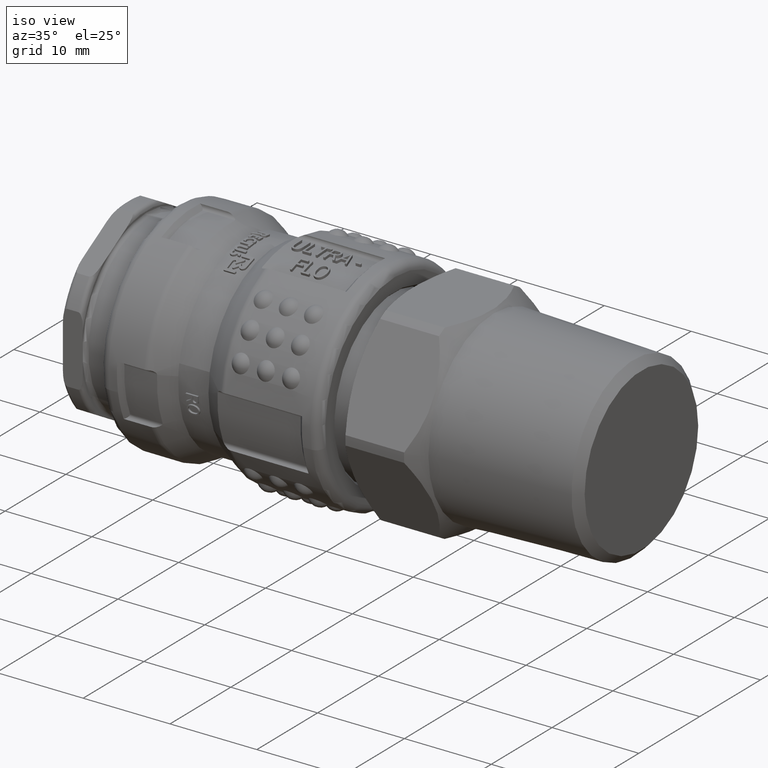
[diagram: clean part render]
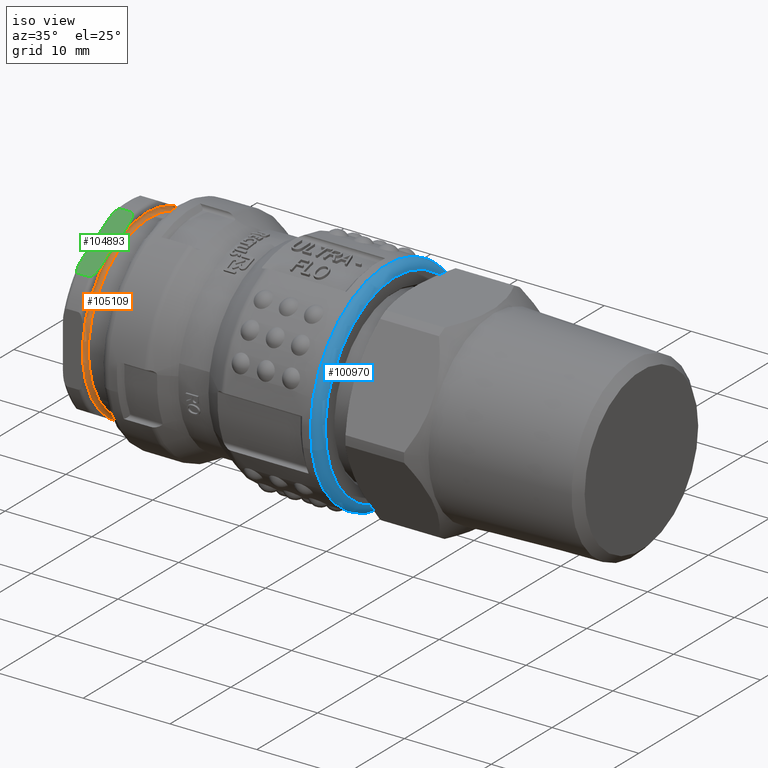
[diagram: same view with three faces highlighted in distinct colors, each labeled with its STEP entity id]
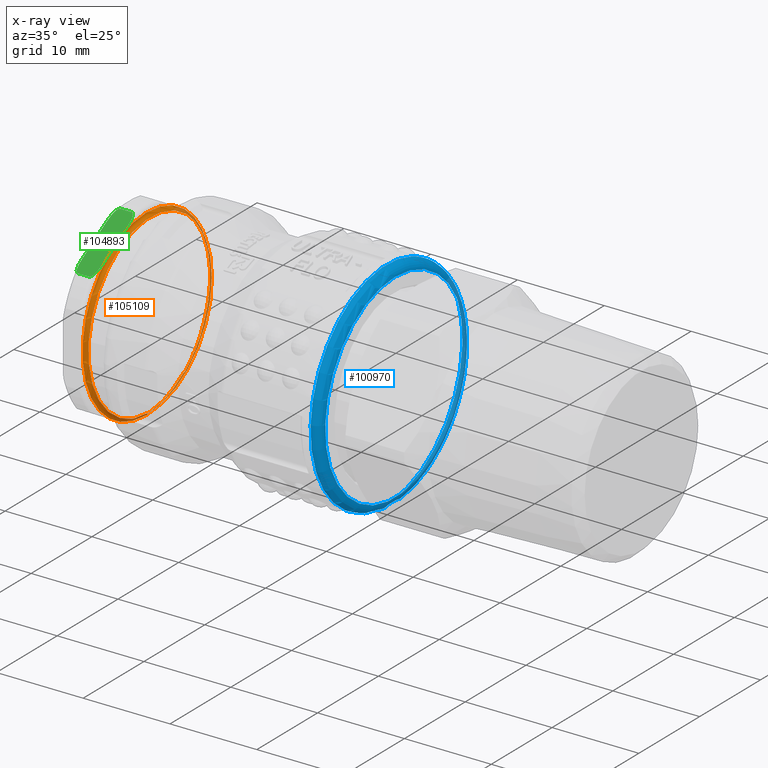
[diagram: x-ray of the same camera — body ghosted, the three highlighted faces saturated]
A machine part, iso view with three faces highlighted in distinct colors.
The next image is the same camera in x-ray (body ghosted, the three faces saturated) — at least one of them is partly hidden behind the body in this view.
Their STEP definitions:

[orange] entity #105109 — the highlighted toroidal blend (fillet) surface has major radius 10.55 mm and minor (blend) radius 0.4 mm.
#104423=CARTESIAN_POINT('',(2.300000000000000,6.138467782195813,-8.580309626519547));
#104424=VERTEX_POINT('',#104423);
#104431=CARTESIAN_POINT('',(2.300000000000000,4.361532217804172,-9.606223852953677));
#104432=VERTEX_POINT('',#104431);
#104433=CARTESIAN_POINT('',(2.299999999999998,4.361532217804154,-9.606223852953688));
#104434=CARTESIAN_POINT('',(2.299999999999998,4.443163184411790,-9.559094192408560));
#104435=CARTESIAN_POINT('',(2.300378094133238,4.541119797077845,-9.502538915716910));
#104436=CARTESIAN_POINT('',(2.301762414152041,4.818765312358481,-9.342240202730341));
#104437=CARTESIAN_POINT('',(2.303137303340309,5.053982863045070,-9.206437286523318));
#104438=CARTESIAN_POINT('',(2.303137303340309,5.249999999999994,-9.093266739736613));
#104439=CARTESIAN_POINT('',(2.303137303340310,5.446017136954917,-8.980096192949908));
#104440=CARTESIAN_POINT('',(2.301762414152041,5.681234687641505,-8.844293276742882));
#104441=CARTESIAN_POINT('',(2.300378094133237,5.958880202922140,-8.683994563756315));
#104442=CARTESIAN_POINT('',(2.299999999999998,6.056836815588195,-8.627439287064663));
#104443=CARTESIAN_POINT('',(2.299999999999998,6.138467782195831,-8.580309626519536));
#104444=B_SPLINE_CURVE_WITH_KNOTS('',3,(#104433,#104434,#104435,#104436,#104437,#104438,#104439,#104440,#104441,#104442,#104443),.UNSPECIFIED.,.F.,.U.,(4,2,3,2,4),(-0.096180124399100,-0.067902328072023,0.0,0.067902328072023,0.096180124399100),.UNSPECIFIED.);
#104445=EDGE_CURVE('',#104432,#104424,#104444,.T.);
#104555=CARTESIAN_POINT('',(2.300000000000000,-4.361532217804166,-9.606223852953681));
#104556=VERTEX_POINT('',#104555);
#104563=CARTESIAN_POINT('',(2.300000000000000,-6.138467782195844,-8.580309626519526));
#104564=VERTEX_POINT('',#104563);
#104565=CARTESIAN_POINT('',(2.299999999999998,-6.138467782195862,-8.580309626519515));
#104566=CARTESIAN_POINT('',(2.299999999999998,-6.056836815588220,-8.627439287064645));
#104567=CARTESIAN_POINT('',(2.300378094133238,-5.958880202922158,-8.683994563756301));
#104568=CARTESIAN_POINT('',(2.301762414152041,-5.681234687641517,-8.844293276742871));
#104569=CARTESIAN_POINT('',(2.303137303340310,-5.446017136954929,-8.980096192949898));
#104570=CARTESIAN_POINT('',(2.303137303340310,-5.250000000000004,-9.093266739736603));
#104571=CARTESIAN_POINT('',(2.303137303340310,-5.053982863045081,-9.206437286523308));
#104572=CARTESIAN_POINT('',(2.301762414152041,-4.818765312358494,-9.342240202730334));
#104573=CARTESIAN_POINT('',(2.300378094133237,-4.541119797077852,-9.502538915716905));
#104574=CARTESIAN_POINT('',(2.299999999999998,-4.443163184411789,-9.559094192408558));
#104575=CARTESIAN_POINT('',(2.299999999999998,-4.361532217804147,-9.606223852953692));
#104576=B_SPLINE_CURVE_WITH_KNOTS('',3,(#104565,#104566,#104567,#104568,#104569,#104570,#104571,#104572,#104573,#104574,#104575),.UNSPECIFIED.,.F.,.U.,(4,2,3,2,4),(-0.096180124399102,-0.067902328072023,0.0,0.067902328072023,0.096180124399102),.UNSPECIFIED.);
#104577=EDGE_CURVE('',#104564,#104556,#104576,.T.);
#104687=CARTESIAN_POINT('',(2.300000000000000,-10.500000000000000,-1.025914226434153));
#104688=VERTEX_POINT('',#104687);
#104695=CARTESIAN_POINT('',(2.300000000000000,-10.500000000000000,1.025914226434156));
#104696=VERTEX_POINT('',#104695);
#104697=CARTESIAN_POINT('',(2.299999999999998,-10.500000000000000,1.025914226434178));
#104698=CARTESIAN_POINT('',(2.299999999999998,-10.500000000000000,0.931654905343915));
#104699=CARTESIAN_POINT('',(2.300378094133237,-10.500000000000000,0.818544351960605));
#104700=CARTESIAN_POINT('',(2.301762414152041,-10.500000000000000,0.497946925987463));
#104701=CARTESIAN_POINT('',(2.303137303340310,-10.500000000000000,0.226341093573411));
#104702=CARTESIAN_POINT('',(2.303137303340310,-10.500000000000000,1.748601E-015));
#104703=CARTESIAN_POINT('',(2.303137303340310,-10.500000000000000,-0.226341093573408));
#104704=CARTESIAN_POINT('',(2.301762414152041,-10.500000000000000,-0.497946925987459));
#104705=CARTESIAN_POINT('',(2.300378094133237,-10.500000000000000,-0.818544351960602));
#104706=CARTESIAN_POINT('',(2.299999999999998,-10.500000000000000,-0.931654905343911));
#104707=CARTESIAN_POINT('',(2.299999999999998,-10.500000000000000,-1.025914226434174));
#104708=B_SPLINE_CURVE_WITH_KNOTS('',3,(#104697,#104698,#104699,#104700,#104701,#104702,#104703,#104704,#104705,#104706,#104707),.UNSPECIFIED.,.F.,.U.,(4,2,3,2,4),(-0.096180124399102,-0.067902328072023,0.0,0.067902328072023,0.096180124399102),.UNSPECIFIED.);
#104709=EDGE_CURVE('',#104696,#104688,#104708,.T.);
#104819=CARTESIAN_POINT('',(2.300000000000000,-6.138467782195836,8.580309626519529));
#104820=VERTEX_POINT('',#104819);
#104827=CARTESIAN_POINT('',(2.300000000000000,-4.361532217804158,9.606223852953685));
#104828=VERTEX_POINT('',#104827);
#104829=CARTESIAN_POINT('',(2.299999999999998,-4.361532217804140,9.606223852953695));
#104830=CARTESIAN_POINT('',(2.299999999999998,-4.443163184411781,9.559094192408564));
#104831=CARTESIAN_POINT('',(2.300378094133237,-4.541119797077843,9.502538915716910));
#104832=CARTESIAN_POINT('',(2.301762414152041,-4.818765312358486,9.342240202730338));
#104833=CARTESIAN_POINT('',(2.303137303340309,-5.053982863045075,9.206437286523313));
#104834=CARTESIAN_POINT('',(2.303137303340310,-5.249999999999998,9.093266739736608));
#104835=CARTESIAN_POINT('',(2.303137303340310,-5.446017136954922,8.980096192949903));
#104836=CARTESIAN_POINT('',(2.301762414152041,-5.681234687641509,8.844293276742876));
#104837=CARTESIAN_POINT('',(2.300378094133238,-5.958880202922150,8.683994563756306));
#104838=CARTESIAN_POINT('',(2.299999999999998,-6.056836815588214,8.627439287064650));
#104839=CARTESIAN_POINT('',(2.299999999999998,-6.138467782195854,8.580309626519520));
#104840=B_SPLINE_CURVE_WITH_KNOTS('',3,(#104829,#104830,#104831,#104832,#104833,#104834,#104835,#104836,#104837,#104838,#104839),.UNSPECIFIED.,.F.,.U.,(4,2,3,2,4),(-0.096180124399102,-0.067902328072023,0.0,0.067902328072023,0.096180124399102),.UNSPECIFIED.);
#104841=EDGE_CURVE('',#104828,#104820,#104840,.T.);
#104951=CARTESIAN_POINT('',(2.300000000000000,4.361532217804163,9.606223852953683));
#104952=VERTEX_POINT('',#104951);
#104959=CARTESIAN_POINT('',(2.300000000000000,6.138467782195840,8.580309626519528));
#104960=VERTEX_POINT('',#104959);
#104961=CARTESIAN_POINT('',(2.299999999999998,6.138467782195860,8.580309626519517));
#104962=CARTESIAN_POINT('',(2.299999999999998,6.056836815588218,8.627439287064648));
#104963=CARTESIAN_POINT('',(2.300378094133238,5.958880202922154,8.683994563756304));
#104964=CARTESIAN_POINT('',(2.301762414152041,5.681234687641512,8.844293276742874));
#104965=CARTESIAN_POINT('',(2.303137303340310,5.446017136954925,8.980096192949901));
#104966=CARTESIAN_POINT('',(2.303137303340310,5.250000000000002,9.093266739736606));
#104967=CARTESIAN_POINT('',(2.303137303340310,5.053982863045078,9.206437286523311));
#104968=CARTESIAN_POINT('',(2.301762414152041,4.818765312358490,9.342240202730336));
#104969=CARTESIAN_POINT('',(2.300378094133237,4.541119797077847,9.502538915716908));
#104970=CARTESIAN_POINT('',(2.299999999999998,4.443163184411786,9.559094192408562));
#104971=CARTESIAN_POINT('',(2.299999999999998,4.361532217804144,9.606223852953693));
#104972=B_SPLINE_CURVE_WITH_KNOTS('',3,(#104961,#104962,#104963,#104964,#104965,#104966,#104967,#104968,#104969,#104970,#104971),.UNSPECIFIED.,.F.,.U.,(4,2,3,2,4),(-0.096180124399102,-0.067902328072023,0.0,0.067902328072023,0.096180124399102),.UNSPECIFIED.);
#104973=EDGE_CURVE('',#104960,#104952,#104972,.T.);
#105026=CARTESIAN_POINT('',(2.699999999999998,0.0,0.0));
#105027=DIRECTION('',(1.0,0.0,0.0));
#105028=DIRECTION('',(0.0,0.0,-1.0));
#105029=AXIS2_PLACEMENT_3D('',#105026,#105027,#105028);
#105030=TOROIDAL_SURFACE('',#105029,10.550000000000001,0.400000000000000);
#105031=CARTESIAN_POINT('',(2.699999999999998,10.150000000000002,0.0));
#105032=VERTEX_POINT('',#105031);
#105033=CARTESIAN_POINT('',(2.700000000000000,0.0,0.0));
#105034=DIRECTION('',(1.0,0.0,0.0));
#105035=DIRECTION('',(0.0,1.0,0.0));
#105036=AXIS2_PLACEMENT_3D('',#105033,#105034,#105035);
#105037=CIRCLE('',#105036,10.150000000000002);
#105038=EDGE_CURVE('',#105032,#105032,#105037,.T.);
#105039=ORIENTED_EDGE('',*,*,#105038,.F.);
#105040=EDGE_LOOP('',(#105039));
#105041=FACE_OUTER_BOUND('',#105040,.T.);
#105042=ORIENTED_EDGE('',*,*,#104445,.T.);
#105043=CARTESIAN_POINT('',(2.300000000000000,10.500000000000000,-1.025914226434155));
#105044=VERTEX_POINT('',#105043);
#105045=CARTESIAN_POINT('',(2.300000000000000,0.0,0.0));
#105046=DIRECTION('',(1.0,0.0,0.0));
#105047=DIRECTION('',(0.0,1.0,0.0));
#105048=AXIS2_PLACEMENT_3D('',#105045,#105046,#105047);
#105049=CIRCLE('',#105048,10.549999999999999);
#105050=EDGE_CURVE('',#104424,#105044,#105049,.T.);
#105051=ORIENTED_EDGE('',*,*,#105050,.T.);
#105052=CARTESIAN_POINT('',(2.300000000000000,10.500000000000000,1.025914226434155));
#105053=VERTEX_POINT('',#105052);
#105054=CARTESIAN_POINT('',(2.299999999999998,10.500000000000000,-1.025914226434176));
#105055=CARTESIAN_POINT('',(2.299999999999998,10.500000000000000,-0.931654905343913));
#105056=CARTESIAN_POINT('',(2.300378094133237,10.500000000000000,-0.818544351960603));
#105057=CARTESIAN_POINT('',(2.301762414152041,10.500000000000000,-0.497946925987461));
#105058=CARTESIAN_POINT('',(2.303137303340310,10.500000000000000,-0.226341093573410));
#105059=CARTESIAN_POINT('',(2.303137303340310,10.500000000000000,0.0));
#105060=CARTESIAN_POINT('',(2.303137303340310,10.500000000000000,0.226341093573410));
#105061=CARTESIAN_POINT('',(2.301762414152041,10.500000000000000,0.497946925987461));
#105062=CARTESIAN_POINT('',(2.300378094133237,10.500000000000000,0.818544351960603));
#105063=CARTESIAN_POINT('',(2.299999999999998,10.500000000000000,0.931654905343913));
#105064=CARTESIAN_POINT('',(2.299999999999998,10.500000000000000,1.025914226434176));
#105065=B_SPLINE_CURVE_WITH_KNOTS('',3,(#105054,#105055,#105056,#105057,#105058,#105059,#105060,#105061,#105062,#105063,#105064),.UNSPECIFIED.,.F.,.U.,(4,2,3,2,4),(-0.096180124399102,-0.067902328072023,0.0,0.067902328072023,0.096180124399102),.UNSPECIFIED.);
#105066=EDGE_CURVE('',#105044,#105053,#105065,.T.);
#105067=ORIENTED_EDGE('',*,*,#105066,.T.);
#105068=CARTESIAN_POINT('',(2.300000000000000,0.0,0.0));
#105069=DIRECTION('',(1.0,0.0,0.0));
#105070=DIRECTION('',(0.0,1.0,0.0));
#105071=AXIS2_PLACEMENT_3D('',#105068,#105069,#105070);
#105072=CIRCLE('',#105071,10.549999999999999);
#105073=EDGE_CURVE('',#105053,#104960,#105072,.T.);
#105074=ORIENTED_EDGE('',*,*,#105073,.T.);
#105075=ORIENTED_EDGE('',*,*,#104973,.T.);
#105076=CARTESIAN_POINT('',(2.300000000000000,0.0,0.0));
#105077=DIRECTION('',(1.0,0.0,0.0));
#105078=DIRECTION('',(0.0,1.0,0.0));
#105079=AXIS2_PLACEMENT_3D('',#105076,#105077,#105078);
#105080=CIRCLE('',#105079,10.549999999999999);
#105081=EDGE_CURVE('',#104952,#104828,#105080,.T.);
#105082=ORIENTED_EDGE('',*,*,#105081,.T.);
#105083=ORIENTED_EDGE('',*,*,#104841,.T.);
#105084=CARTESIAN_POINT('',(2.300000000000000,0.0,0.0));
#105085=DIRECTION('',(1.0,0.0,0.0));
#105086=DIRECTION('',(0.0,1.0,0.0));
#105087=AXIS2_PLACEMENT_3D('',#105084,#105085,#105086);
#105088=CIRCLE('',#105087,10.549999999999999);
#105089=EDGE_CURVE('',#104820,#104696,#105088,.T.);
#105090=ORIENTED_EDGE('',*,*,#105089,.T.);
#105091=ORIENTED_EDGE('',*,*,#104709,.T.);
#105092=CARTESIAN_POINT('',(2.300000000000000,0.0,0.0));
#105093=DIRECTION('',(1.0,0.0,0.0));
#105094=DIRECTION('',(0.0,1.0,0.0));
#105095=AXIS2_PLACEMENT_3D('',#105092,#105093,#105094);
#105096=CIRCLE('',#105095,10.549999999999999);
#105097=EDGE_CURVE('',#104688,#104564,#105096,.T.);
#105098=ORIENTED_EDGE('',*,*,#105097,.T.);
#105099=ORIENTED_EDGE('',*,*,#104577,.T.);
#105100=CARTESIAN_POINT('',(2.300000000000000,0.0,0.0));
#105101=DIRECTION('',(1.0,0.0,0.0));
#105102=DIRECTION('',(0.0,1.0,0.0));
#105103=AXIS2_PLACEMENT_3D('',#105100,#105101,#105102);
#105104=CIRCLE('',#105103,10.549999999999999);
#105105=EDGE_CURVE('',#104556,#104432,#105104,.T.);
#105106=ORIENTED_EDGE('',*,*,#105105,.T.);
#105107=EDGE_LOOP('',(#105042,#105051,#105067,#105074,#105075,#105082,#105083,#105090,#105091,#105098,#105099,#105106));
#105108=FACE_BOUND('',#105107,.T.);
#105109=ADVANCED_FACE('',(#105041,#105108),#105030,.F.);

[blue] entity #100970 — the highlighted toroidal blend (fillet) surface has major radius 11.5 mm and minor (blend) radius 1 mm.
#100117=CARTESIAN_POINT('',(30.927800000000005,-11.342941893801839,-1.894114356060672));
#100118=VERTEX_POINT('',#100117);
#100119=CARTESIAN_POINT('',(30.927800000000005,-6.238328E-016,-5.087376E-030));
#100120=DIRECTION('',(-1.000000000000000,1.962343E-017,3.276841E-018));
#100121=DIRECTION('',(1.989514E-017,0.986342773374073,0.164705596179189));
#100122=AXIS2_PLACEMENT_3D('',#100119,#100120,#100121);
#100123=CIRCLE('',#100122,11.499999999999998);
#100124=EDGE_CURVE('',#100118,#100118,#100123,.T.);
#100947=CARTESIAN_POINT('',(29.927800000000001,-12.329284667175912,-2.058819952239864));
#100948=VERTEX_POINT('',#100947);
#100949=CARTESIAN_POINT('',(29.927800000000001,-6.036622E-016,-4.922485E-030));
#100950=DIRECTION('',(1.000000000000000,-1.962343E-017,-3.276841E-018));
#100951=DIRECTION('',(1.989514E-017,0.986342773374073,0.164705596179189));
#100952=AXIS2_PLACEMENT_3D('',#100949,#100950,#100951);
#100953=CIRCLE('',#100952,12.499999999999998);
#100954=EDGE_CURVE('',#100948,#100948,#100953,.T.);
#100959=CARTESIAN_POINT('',(29.927800000000001,-6.036622E-016,-4.922485E-030));
#100960=DIRECTION('',(-1.0,2.017062E-017,1.648912E-031));
#100961=DIRECTION('',(-3.322214E-018,-0.164705596179189,0.986342773374073));
#100962=AXIS2_PLACEMENT_3D('',#100959,#100960,#100961);
#100963=TOROIDAL_SURFACE('',#100962,11.500000000000000,1.0);
#100964=ORIENTED_EDGE('',*,*,#100124,.T.);
#100965=EDGE_LOOP('',(#100964));
#100966=FACE_OUTER_BOUND('',#100965,.T.);
#100967=ORIENTED_EDGE('',*,*,#100954,.T.);
#100968=EDGE_LOOP('',(#100967));
#100969=FACE_BOUND('',#100968,.T.);
#100970=ADVANCED_FACE('',(#100966,#100969),#100963,.T.);

[green] entity #104893 — the highlighted planar face has unit normal (0, 0.5, -0.866).
#104762=CARTESIAN_POINT('',(2.537318455405742,-5.249999999999996,9.093266739736608));
#104763=DIRECTION('',(0.0,0.500000000000000,-0.866025403784439));
#104764=DIRECTION('',(0.0,0.866025403784439,0.500000000000000));
#104765=AXIS2_PLACEMENT_3D('',#104762,#104763,#104764);
#104766=PLANE('',#104765);
#104767=CARTESIAN_POINT('',(0.0,-7.246089927833909,7.940823682574999));
#104768=VERTEX_POINT('',#104767);
#104769=CARTESIAN_POINT('',(0.0,-3.253910072166085,10.245709796898216));
#104770=VERTEX_POINT('',#104769);
#104771=CARTESIAN_POINT('',(-8.326673E-016,-7.246089927833909,7.940823682574997));
#104772=DIRECTION('',(0.0,0.866025403784439,0.500000000000000));
#104773=VECTOR('',#104772,4.609772228646438);
#104774=LINE('',#104771,#104773);
#104775=EDGE_CURVE('',#104768,#104770,#104774,.T.);
#104776=ORIENTED_EDGE('',*,*,#104775,.F.);
#104777=CARTESIAN_POINT('',(0.499999999999998,-8.747767144908302,7.073829937061169));
#104778=VERTEX_POINT('',#104777);
#104779=CARTESIAN_POINT('',(0.500000000000001,-8.747767144908302,7.073829937061169));
#104780=CARTESIAN_POINT('',(0.481121643181689,-8.747767144908302,7.073829937061169));
#104781=CARTESIAN_POINT('',(0.458793051211936,-8.744453652771828,7.075742982638120));
#104782=CARTESIAN_POINT('',(0.419627389315130,-8.733179611163592,7.082252053595491));
#104783=CARTESIAN_POINT('',(0.395950711829970,-8.722171444050012,7.088607621841802));
#104784=CARTESIAN_POINT('',(0.316967568714505,-8.673656333029795,7.116617834249088));
#104785=CARTESIAN_POINT('',(0.265911333462272,-8.610178992294527,7.153266494010037));
#104786=CARTESIAN_POINT('',(0.115388660381504,-8.366283622324071,7.294079551516584));
#104787=CARTESIAN_POINT('',(0.069277545910453,-8.144360706525660,7.422206806692141));
#104788=CARTESIAN_POINT('',(0.007777012194475,-7.690678814278859,7.684140169307291));
#104789=CARTESIAN_POINT('',(-1.023753E-015,-7.458170150810666,7.818379108749572));
#104790=CARTESIAN_POINT('',(-1.036497E-015,-7.246089927833901,7.940823682575004));
#104791=B_SPLINE_CURVE_WITH_KNOTS('',3,(#104779,#104780,#104781,#104782,#104783,#104784,#104785,#104786,#104787,#104788,#104789,#104790),.UNSPECIFIED.,.F.,.U.,(4,2,2,2,2,4),(-0.397866170477986,-0.392202663432492,-0.385484413810798,-0.363152771171895,-0.289686026876637,-0.216219282581378),.UNSPECIFIED.);
#104792=EDGE_CURVE('',#104778,#104768,#104791,.T.);
#104793=ORIENTED_EDGE('',*,*,#104792,.F.);
#104794=CARTESIAN_POINT('',(1.799999999999997,-8.747767144908302,7.073829937061169));
#104795=VERTEX_POINT('',#104794);
#104796=CARTESIAN_POINT('',(1.799999999999997,-8.747767144908302,7.073829937061169));
#104797=DIRECTION('',(-1.0,0.0,0.0));
#104798=VECTOR('',#104797,1.299999999999999);
#104799=LINE('',#104796,#104798);
#104800=EDGE_CURVE('',#104795,#104778,#104799,.T.);
#104801=ORIENTED_EDGE('',*,*,#104800,.F.);
#104802=CARTESIAN_POINT('',(2.299999999999995,-7.246089927833918,7.940823682574994));
#104803=VERTEX_POINT('',#104802);
#104804=CARTESIAN_POINT('',(2.299999999999997,-7.246089927833907,7.940823682574999));
#104805=CARTESIAN_POINT('',(2.299999999999997,-7.458170150810672,7.818379108749570));
#104806=CARTESIAN_POINT('',(2.292222987805522,-7.690678814278863,7.684140169307288));
#104807=CARTESIAN_POINT('',(2.230722454089544,-8.144360706525662,7.422206806692140));
#104808=CARTESIAN_POINT('',(2.184611339618493,-8.366283622324071,7.294079551516583));
#104809=CARTESIAN_POINT('',(2.034088666537726,-8.610178992294527,7.153266494010037));
#104810=CARTESIAN_POINT('',(1.983032431285494,-8.673656333029795,7.116617834249088));
#104811=CARTESIAN_POINT('',(1.904049288170030,-8.722171444050010,7.088607621841802));
#104812=CARTESIAN_POINT('',(1.880372610684868,-8.733179611163585,7.082252053595495));
#104813=CARTESIAN_POINT('',(1.841206948788063,-8.744453652771822,7.075742982638124));
#104814=CARTESIAN_POINT('',(1.818878356818310,-8.747767144908302,7.073829937061169));
#104815=CARTESIAN_POINT('',(1.799999999999997,-8.747767144908302,7.073829937061169));
#104816=B_SPLINE_CURVE_WITH_KNOTS('',3,(#104804,#104805,#104806,#104807,#104808,#104809,#104810,#104811,#104812,#104813,#104814,#104815),.UNSPECIFIED.,.F.,.U.,(4,2,2,2,2,4),(1.011951623537351,1.085418367832609,1.158885112127867,1.181216754766770,1.187935004388464,1.193598511433958),.UNSPECIFIED.);
#104817=EDGE_CURVE('',#104803,#104795,#104816,.T.);
#104818=ORIENTED_EDGE('',*,*,#104817,.F.);
#104819=CARTESIAN_POINT('',(2.300000000000000,-6.138467782195836,8.580309626519529));
#104820=VERTEX_POINT('',#104819);
#104821=CARTESIAN_POINT('',(2.299999999999998,-6.138467782195837,8.580309626519531));
#104822=DIRECTION('',(0.0,-0.866025403784438,-0.500000000000000));
#104823=VECTOR('',#104822,1.278971887889074);
#104824=LINE('',#104821,#104823);
#104825=EDGE_CURVE('',#104820,#104803,#104824,.T.);
#104826=ORIENTED_EDGE('',*,*,#104825,.F.);
#104827=CARTESIAN_POINT('',(2.300000000000000,-4.361532217804158,9.606223852953685));
#104828=VERTEX_POINT('',#104827);
#104829=CARTESIAN_POINT('',(2.299999999999998,-4.361532217804140,9.606223852953695));
#104830=CARTESIAN_POINT('',(2.299999999999998,-4.443163184411781,9.559094192408564));
#104831=CARTESIAN_POINT('',(2.300378094133237,-4.541119797077843,9.502538915716910));
#104832=CARTESIAN_POINT('',(2.301762414152041,-4.818765312358486,9.342240202730338));
#104833=CARTESIAN_POINT('',(2.303137303340309,-5.053982863045075,9.206437286523313));
#104834=CARTESIAN_POINT('',(2.303137303340310,-5.249999999999998,9.093266739736608));
#104835=CARTESIAN_POINT('',(2.303137303340310,-5.446017136954922,8.980096192949903));
#104836=CARTESIAN_POINT('',(2.301762414152041,-5.681234687641509,8.844293276742876));
#104837=CARTESIAN_POINT('',(2.300378094133238,-5.958880202922150,8.683994563756306));
#104838=CARTESIAN_POINT('',(2.299999999999998,-6.056836815588214,8.627439287064650));
#104839=CARTESIAN_POINT('',(2.299999999999998,-6.138467782195854,8.580309626519520));
#104840=B_SPLINE_CURVE_WITH_KNOTS('',3,(#104829,#104830,#104831,#104832,#104833,#104834,#104835,#104836,#104837,#104838,#104839),.UNSPECIFIED.,.F.,.U.,(4,2,3,2,4),(-0.096180124399102,-0.067902328072023,0.0,0.067902328072023,0.096180124399102),.UNSPECIFIED.);
#104841=EDGE_CURVE('',#104828,#104820,#104840,.T.);
#104842=ORIENTED_EDGE('',*,*,#104841,.F.);
#104843=CARTESIAN_POINT('',(2.299999999999995,-3.253910072166076,10.245709796898222));
#104844=VERTEX_POINT('',#104843);
#104845=CARTESIAN_POINT('',(2.299999999999998,-3.253910072166077,10.245709796898222));
#104846=DIRECTION('',(0.0,-0.866025403784438,-0.500000000000000));
#104847=VECTOR('',#104846,1.278971887889074);
#104848=LINE('',#104845,#104847);
#104849=EDGE_CURVE('',#104844,#104828,#104848,.T.);
#104850=ORIENTED_EDGE('',*,*,#104849,.F.);
#104851=CARTESIAN_POINT('',(1.799999999999997,-1.752232855091691,11.112703542412046));
#104852=VERTEX_POINT('',#104851);
#104853=CARTESIAN_POINT('',(1.799999999999997,-1.752232855091691,11.112703542412046));
#104854=CARTESIAN_POINT('',(1.818878356818310,-1.752232855091691,11.112703542412046));
#104855=CARTESIAN_POINT('',(1.841206948788063,-1.755546347228170,11.110790496835090));
#104856=CARTESIAN_POINT('',(1.880372610684868,-1.766820388836407,11.104281425877719));
#104857=CARTESIAN_POINT('',(1.904049288170030,-1.777828555949983,11.097925857631413));
#104858=CARTESIAN_POINT('',(1.983032431285494,-1.826343666970199,11.069915645224127));
#104859=CARTESIAN_POINT('',(2.034088666537726,-1.889821007705467,11.033266985463177));
#104860=CARTESIAN_POINT('',(2.184611339618494,-2.133716377675923,10.892453927956630));
#104861=CARTESIAN_POINT('',(2.230722454089543,-2.355639293474332,10.764326672781074));
#104862=CARTESIAN_POINT('',(2.292222987805521,-2.809321185721130,10.502393310165928));
#104863=CARTESIAN_POINT('',(2.299999999999997,-3.041829849189321,10.368154370723648));
#104864=CARTESIAN_POINT('',(2.299999999999997,-3.253910072166085,10.245709796898216));
#104865=B_SPLINE_CURVE_WITH_KNOTS('',3,(#104853,#104854,#104855,#104856,#104857,#104858,#104859,#104860,#104861,#104862,#104863,#104864),.UNSPECIFIED.,.F.,.U.,(4,2,2,2,2,4),(0.397866170477986,0.403529677523480,0.410247927145174,0.432579569784076,0.506046314079335,0.579513058374593),.UNSPECIFIED.);
#104866=EDGE_CURVE('',#104852,#104844,#104865,.T.);
#104867=ORIENTED_EDGE('',*,*,#104866,.F.);
#104868=CARTESIAN_POINT('',(0.499999999999998,-1.752232855091691,11.112703542412046));
#104869=VERTEX_POINT('',#104868);
#104870=CARTESIAN_POINT('',(0.499999999999998,-1.752232855091691,11.112703542412046));
#104871=DIRECTION('',(1.0,0.0,0.0));
#104872=VECTOR('',#104871,1.299999999999999);
#104873=LINE('',#104870,#104872);
#104874=EDGE_CURVE('',#104869,#104852,#104873,.T.);
#104875=ORIENTED_EDGE('',*,*,#104874,.F.);
#104876=CARTESIAN_POINT('',(-8.326673E-016,-3.253910072166093,10.245709796898213));
#104877=CARTESIAN_POINT('',(-5.386953E-016,-3.041829849189328,10.368154370723644));
#104878=CARTESIAN_POINT('',(0.007777012194475,-2.809321185721136,10.502393310165923));
#104879=CARTESIAN_POINT('',(0.069277545910454,-2.355639293474335,10.764326672781070));
#104880=CARTESIAN_POINT('',(0.115388660381504,-2.133716377675924,10.892453927956630));
#104881=CARTESIAN_POINT('',(0.265911333462272,-1.889821007705467,11.033266985463177));
#104882=CARTESIAN_POINT('',(0.316967568714505,-1.826343666970199,11.069915645224127));
#104883=CARTESIAN_POINT('',(0.395950711829970,-1.777828555949983,11.097925857631413));
#104884=CARTESIAN_POINT('',(0.419627389315130,-1.766820388836402,11.104281425877723));
#104885=CARTESIAN_POINT('',(0.458793051211936,-1.755546347228165,11.110790496835092));
#104886=CARTESIAN_POINT('',(0.481121643181689,-1.752232855091691,11.112703542412046));
#104887=CARTESIAN_POINT('',(0.500000000000002,-1.752232855091691,11.112703542412046));
#104888=B_SPLINE_CURVE_WITH_KNOTS('',3,(#104876,#104877,#104878,#104879,#104880,#104881,#104882,#104883,#104884,#104885,#104886,#104887),.UNSPECIFIED.,.F.,.U.,(4,2,2,2,2,4),(0.216219282581378,0.289686026876637,0.363152771171896,0.385484413810798,0.392202663432492,0.397866170477986),.UNSPECIFIED.);
#104889=EDGE_CURVE('',#104770,#104869,#104888,.T.);
#104890=ORIENTED_EDGE('',*,*,#104889,.F.);
#104891=EDGE_LOOP('',(#104776,#104793,#104801,#104818,#104826,#104842,#104850,#104867,#104875,#104890));
#104892=FACE_OUTER_BOUND('',#104891,.T.);
#104893=ADVANCED_FACE('',(#104892),#104766,.F.);